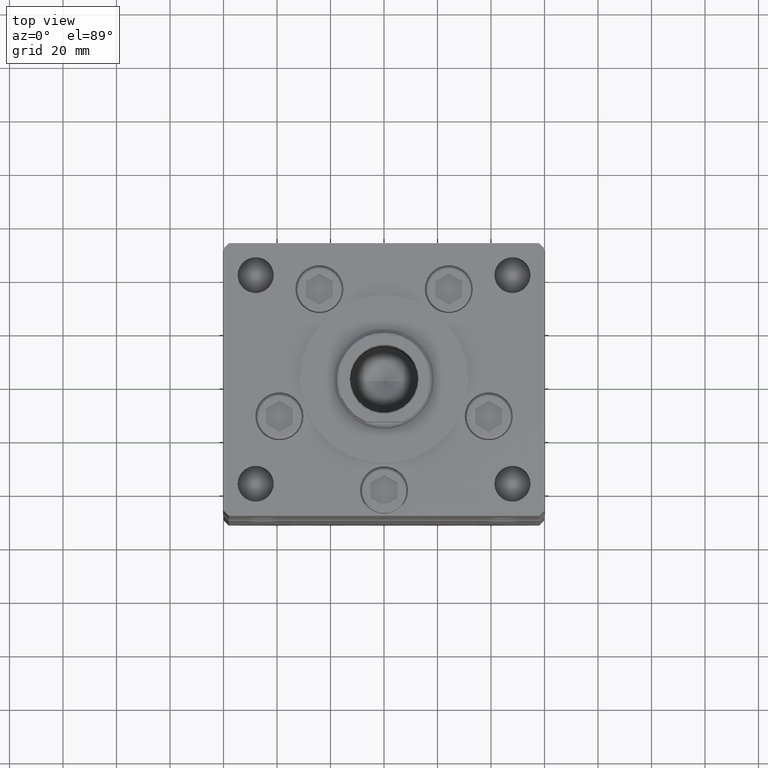
[diagram: clean part render]
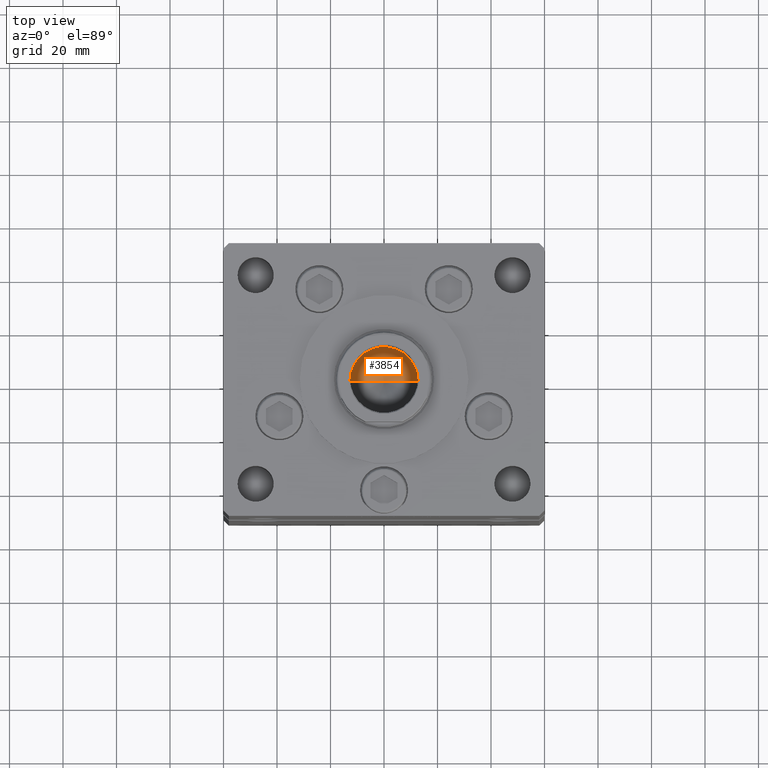
[diagram: same view with one face highlighted and labeled with its STEP entity id]
A machine part, top view. The second image highlights one B-rep face of the part: STEP entity #3854.
In plain terms, the highlighted conical surface has half-angle 59 deg.
Its self-contained STEP definition (entity closure, byte-faithful):
#72 = ORIENTED_EDGE ( 'NONE', *, *, #45677, .F. ) ;
#868 = EDGE_CURVE ( 'NONE', #50579, #39992, #47897, .T. ) ;
#1319 = CARTESIAN_POINT ( 'NONE',  ( 0.000000000000000000, 0.000000000000000000, 144.2500000000000000 ) ) ;
#1580 = DIRECTION ( 'NONE',  ( 1.000000000000000000, 0.000000000000000000, 0.000000000000000000 ) ) ;
#1901 = EDGE_CURVE ( 'NONE', #40117, #50579, #51718, .T. ) ;
#3854 = ADVANCED_FACE ( 'NONE', ( #26534 ), #13769, .F. ) ;
#4935 = CARTESIAN_POINT ( 'NONE',  ( -12.74999999999999112, 1.561424668912874125E-15, 144.2500000000000000 ) ) ;
#9563 = DIRECTION ( 'NONE',  ( -0.000000000000000000, -0.000000000000000000, 1.000000000000000000 ) ) ;
#10323 = ORIENTED_EDGE ( 'NONE', *, *, #868, .T. ) ;
#13769 = CONICAL_SURFACE ( 'NONE', #46343, 12.74999999999999112, 1.029744258676655200 ) ;
#17933 = AXIS2_PLACEMENT_3D ( 'NONE', #46038, #9563, #33438 ) ;
#18883 = CARTESIAN_POINT ( 'NONE',  ( -12.74999999999999112, 1.561424668912874125E-15, 144.2500000000000000 ) ) ;
#20261 = EDGE_LOOP ( 'NONE', ( #72, #44737, #10323 ) ) ;
#21991 = DIRECTION ( 'NONE',  ( -0.000000000000000000, -0.000000000000000000, 1.000000000000000000 ) ) ;
#22095 = CARTESIAN_POINT ( 'NONE',  ( 12.74999999999999112, 0.000000000000000000, 144.2500000000000000 ) ) ;
#26534 = FACE_OUTER_BOUND ( 'NONE', #20261, .T. ) ;
#27361 = VECTOR ( 'NONE', #33463, 1000.000000000000114 ) ;
#31322 = DIRECTION ( 'NONE',  ( 0.8571673007021125557, 0.000000000000000000, 0.5150380749100536004 ) ) ;
#33438 = DIRECTION ( 'NONE',  ( 1.000000000000000000, 0.000000000000000000, 0.000000000000000000 ) ) ;
#33463 = DIRECTION ( 'NONE',  ( -0.8571673007021125557, 1.049727191138618942E-16, 0.5150380749100536004 ) ) ;
#34981 = LINE ( 'NONE', #18883, #27361 ) ;
#39500 = CARTESIAN_POINT ( 'NONE',  ( -1.307202896762960287E-14, 0.000000000000000000, 136.5890271073986071 ) ) ;
#39992 = VERTEX_POINT ( 'NONE', #4935 ) ;
#40117 = VERTEX_POINT ( 'NONE', #39500 ) ;
#41968 = VECTOR ( 'NONE', #31322, 1000.000000000000114 ) ;
#43126 = CARTESIAN_POINT ( 'NONE',  ( 12.74999999999999112, 0.000000000000000000, 144.2500000000000000 ) ) ;
#44737 = ORIENTED_EDGE ( 'NONE', *, *, #1901, .T. ) ;
#45677 = EDGE_CURVE ( 'NONE', #40117, #39992, #34981, .T. ) ;
#46038 = CARTESIAN_POINT ( 'NONE',  ( 0.000000000000000000, 0.000000000000000000, 144.2500000000000000 ) ) ;
#46343 = AXIS2_PLACEMENT_3D ( 'NONE', #1319, #21991, #1580 ) ;
#47897 = CIRCLE ( 'NONE', #17933, 12.74999999999999112 ) ;
#50579 = VERTEX_POINT ( 'NONE', #22095 ) ;
#51718 = LINE ( 'NONE', #43126, #41968 ) ;